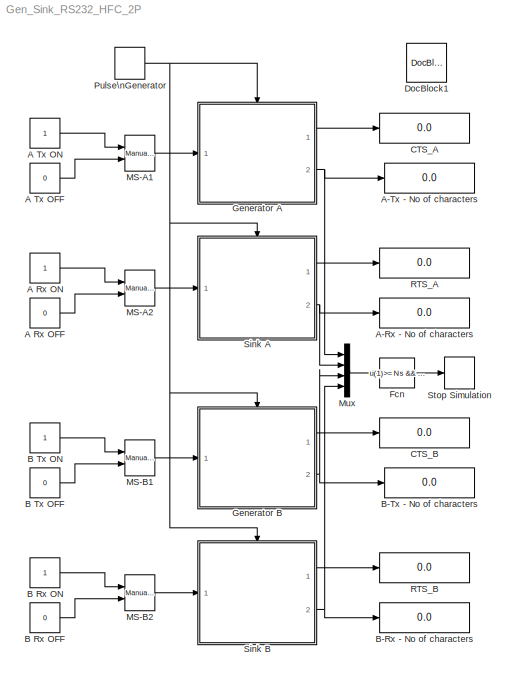
MODEL Gen_Sink_RS232_HFC_2P
KIND model
CONFIG PreLoadFcn = clear all;\nclose all;\nclc;\n\nTs = 1;          % clk (period)\n\nNs =  1;      % Characters to Tx and to Rx\n\n\n\n\n
CONFIG StartFcn = clc;\nclose all;\n\nNs =  100;      % Characters to Tx and to Rx\nminV = 0;       %  minimum data value\nmaxV = 255;       %  minimum data value\nTx_A = randi([minV maxV], 1, Ns, 'uint8');\nRx_A = randi([minV maxV], 1, Ns, 'uint8');\nTx_B = randi([minV maxV], 1, Ns, 'uint8');\nRx_B = randi([minV maxV], 1, Ns, 'uint8');\n\n%\n%   RS232 ports initialization\n%\nPORTNAME1 = 'COM57';\nfprintf('\\nOpen...<+848ch>
CONFIG StopFcn = %\n%   RS232 ports release\n%\ndisp(' ');\ndisp('Deactivating RS232 ports ......');\n\nfclose(s1)\ndelete(s1)\nclear s1\nfprintf('RS232 port %s deactivated\\n', PORTNAME1);\n\nfclose(s2)\ndelete(s2)\nclear s2\n\nfprintf('RS232 port %s deactivated\\n', PORTNAME2);\ndisp(' ');\n\nif sum(Tx_A == Rx_B) == Ns &&  sum(Tx_B == Rx_A) == Ns\n  disp('Data exchange without errors');\nelse\n   NeA = sum((Tx_A...<+237ch>
BLOCK [Constant] A Rx OFF
  SID = 74
  Value = 0
BLOCK [Constant] A Rx ON
  SID = 75
BLOCK [Constant] A Tx OFF
  SID = 72
  Value = 0
BLOCK [Constant] A Tx ON
  SID = 71
BLOCK [Display] A-Rx - No of characters
  Decimation = 1
  Lockdown = off
  Ports = [1]
  SID = 68
BLOCK [Display] A-Tx - No of characters
  Decimation = 1
  Lockdown = off
  Ports = [1]
  SID = 58
BLOCK [Constant] B Rx OFF
  SID = 91
  Value = 0
BLOCK [Constant] B Rx ON
  SID = 92
BLOCK [Constant] B Tx OFF
  SID = 95
  Value = 0
BLOCK [Constant] B Tx ON
  SID = 96
BLOCK [Display] B-Rx - No of characters
  Decimation = 1
  Lockdown = off
  Ports = [1]
  SID = 90
BLOCK [Display] B-Tx - No of characters
  Decimation = 1
  Lockdown = off
  Ports = [1]
  SID = 94
BLOCK [Display] CTS_A
  Decimation = 1
  Lockdown = off
  Ports = [1]
  SID = 56
BLOCK [Display] CTS_B
  Decimation = 1
  Lockdown = off
  Ports = [1]
  SID = 83
BLOCK [Reference] DocBlock1  REF=simulink/Model-Wide\nUtilities/DocBlock
  DocumentType = Text
  Ports = []
  SID = 15
  SourceBlock = simulink/Model-Wide\nUtilities/DocBlock
  SourceType = DocBlock
  UserData = DataTag0
  UserDataPersistent = on
BLOCK [Fcn] Fcn
  Expr = u(1)>= Ns && u(2)>=Ns && u(3)>=Ns && u(4)>=Ns
  SID = 81
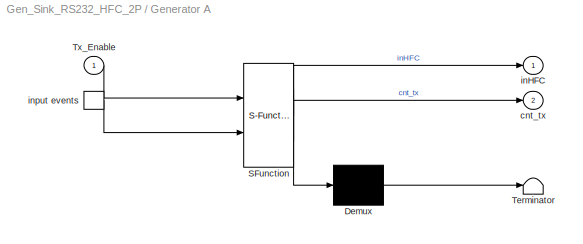
BLOCK [SubSystem] Generator A
  ErrorFcn = Stateflow.Translate.translate
  FunctionWithSeparateData = off
  MaskHideContents = off
  MinAlgLoopOccurrences = off
  Opaque = off
  PermitHierarchicalResolution = ExplicitOnly
  Ports = [1, 2, 0, 1]
  PropExecContextOutsideSubsystem = off
  RTWSystemCode = Auto
  RequestExecContextInheritance = off
  SFBlockType = Chart
  SID = 45
  TreatAsAtomicUnit = on
BLOCK [Demux] Generator A/ Demux 
  Outputs = 1
  Ports = [1, 1]
  SID = 45::54
BLOCK [S-Function] Generator A/ SFunction 
  EnableBusSupport = on
  FunctionName = sf_sfun
  PortCounts = [2 3]
  Ports = [2, 3]
  SID = 45::53
  Tag = Stateflow S-Function Gen_Sink_RS232_HFC_2P 3
BLOCK [Terminator] Generator A/ Terminator 
  SID = 45::55
BLOCK [TriggerPort] Generator A/ input events 
  Ports = [0, 1]
  SID = 45::29
  ShowOutputPort = on
  StatesWhenEnabling = held
  TriggerType = either
BLOCK [Inport] Generator A/Tx_Enable
  IconDisplay = Port number
  SID = 45::58
BLOCK [Outport] Generator A/cnt_tx
  IconDisplay = Port number
  Port = 2
  SID = 45::56
BLOCK [Outport] Generator A/inHFC
  IconDisplay = Port number
  SID = 45::57
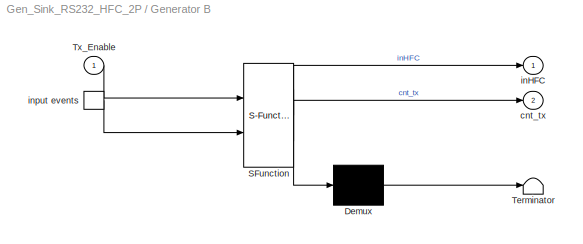
BLOCK [SubSystem] Generator B
  ErrorFcn = Stateflow.Translate.translate
  FunctionWithSeparateData = off
  MaskHideContents = off
  MinAlgLoopOccurrences = off
  Opaque = off
  PermitHierarchicalResolution = ExplicitOnly
  Ports = [1, 2, 0, 1]
  PropExecContextOutsideSubsystem = off
  RTWSystemCode = Auto
  RequestExecContextInheritance = off
  SFBlockType = Chart
  SID = 85
  TreatAsAtomicUnit = on
BLOCK [Demux] Generator B/ Demux 
  Outputs = 1
  Ports = [1, 1]
  SID = 85::54
BLOCK [S-Function] Generator B/ SFunction 
  EnableBusSupport = on
  FunctionName = sf_sfun
  PortCounts = [2 3]
  Ports = [2, 3]
  SID = 85::53
  Tag = Stateflow S-Function Gen_Sink_RS232_HFC_2P 2
BLOCK [Terminator] Generator B/ Terminator 
  SID = 85::55
BLOCK [TriggerPort] Generator B/ input events 
  Ports = [0, 1]
  SID = 85::29
  ShowOutputPort = on
  StatesWhenEnabling = held
  TriggerType = either
BLOCK [Inport] Generator B/Tx_Enable
  IconDisplay = Port number
  SID = 85::58
BLOCK [Outport] Generator B/cnt_tx
  IconDisplay = Port number
  Port = 2
  SID = 85::56
BLOCK [Outport] Generator B/inHFC
  IconDisplay = Port number
  SID = 85::57
BLOCK [Reference] MS-A1  REF=simulink/Signal\nRouting/Manual Switch
  Ports = [2, 1]
  SID = 70
  SourceBlock = simulink/Signal\nRouting/Manual Switch
  SourceType = Manual Switch
  action = 0
  sw = 1
  varsize = off
BLOCK [Reference] MS-A2  REF=simulink/Signal\nRouting/Manual Switch
  Ports = [2, 1]
  SID = 73
  SourceBlock = simulink/Signal\nRouting/Manual Switch
  SourceType = Manual Switch
  action = 0
  sw = 1
  varsize = off
BLOCK [Reference] MS-B1  REF=simulink/Signal\nRouting/Manual Switch
  Ports = [2, 1]
  SID = 86
  SourceBlock = simulink/Signal\nRouting/Manual Switch
  SourceType = Manual Switch
  action = 0
  sw = 1
  varsize = off
BLOCK [Reference] MS-B2  REF=simulink/Signal\nRouting/Manual Switch
  Ports = [2, 1]
  SID = 87
  SourceBlock = simulink/Signal\nRouting/Manual Switch
  SourceType = Manual Switch
  action = 0
  sw = 1
  varsize = off
BLOCK [Mux] Mux
  DisplayOption = bar
  Ports = [4, 1]
  SID = 82
BLOCK [DiscretePulseGenerator] Pulse\nGenerator
  Period = Ts
  Ports = [0, 1]
  PulseType = Time based
  PulseWidth = 50
  SID = 4
BLOCK [Display] RTS_A
  Decimation = 1
  Lockdown = off
  Ports = [1]
  SID = 69
BLOCK [Display] RTS_B
  Decimation = 1
  Lockdown = off
  Ports = [1]
  SID = 89
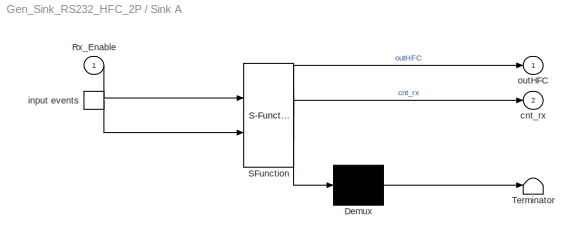
BLOCK [SubSystem] Sink A
  ErrorFcn = Stateflow.Translate.translate
  FunctionWithSeparateData = off
  MaskHideContents = off
  MinAlgLoopOccurrences = off
  Opaque = off
  PermitHierarchicalResolution = ExplicitOnly
  Ports = [1, 2, 0, 1]
  PropExecContextOutsideSubsystem = off
  RTWSystemCode = Auto
  RequestExecContextInheritance = off
  SFBlockType = Chart
  SID = 66
  TreatAsAtomicUnit = on
BLOCK [Demux] Sink A/ Demux 
  Outputs = 1
  Ports = [1, 1]
  SID = 66::54
BLOCK [S-Function] Sink A/ SFunction 
  EnableBusSupport = on
  FunctionName = sf_sfun
  PortCounts = [2 3]
  Ports = [2, 3]
  SID = 66::53
  Tag = Stateflow S-Function Gen_Sink_RS232_HFC_2P 1
BLOCK [Terminator] Sink A/ Terminator 
  SID = 66::55
BLOCK [TriggerPort] Sink A/ input events 
  Ports = [0, 1]
  SID = 66::29
  ShowOutputPort = on
  StatesWhenEnabling = held
  TriggerType = either
BLOCK [Inport] Sink A/Rx_Enable
  IconDisplay = Port number
  SID = 66::57
BLOCK [Outport] Sink A/cnt_rx
  IconDisplay = Port number
  Port = 2
  SID = 66::56
BLOCK [Outport] Sink A/outHFC
  IconDisplay = Port number
  SID = 66::49
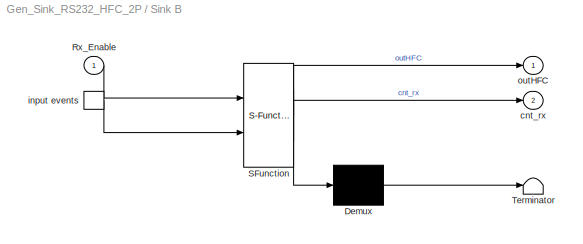
BLOCK [SubSystem] Sink B
  ErrorFcn = Stateflow.Translate.translate
  FunctionWithSeparateData = off
  MaskHideContents = off
  MinAlgLoopOccurrences = off
  Opaque = off
  PermitHierarchicalResolution = ExplicitOnly
  Ports = [1, 2, 0, 1]
  PropExecContextOutsideSubsystem = off
  RTWSystemCode = Auto
  RequestExecContextInheritance = off
  SFBlockType = Chart
  SID = 93
  TreatAsAtomicUnit = on
BLOCK [Demux] Sink B/ Demux 
  Outputs = 1
  Ports = [1, 1]
  SID = 93::54
BLOCK [S-Function] Sink B/ SFunction 
  EnableBusSupport = on
  FunctionName = sf_sfun
  PortCounts = [2 3]
  Ports = [2, 3]
  SID = 93::53
  Tag = Stateflow S-Function Gen_Sink_RS232_HFC_2P 4
BLOCK [Terminator] Sink B/ Terminator 
  SID = 93::55
BLOCK [TriggerPort] Sink B/ input events 
  Ports = [0, 1]
  SID = 93::29
  ShowOutputPort = on
  StatesWhenEnabling = held
  TriggerType = either
BLOCK [Inport] Sink B/Rx_Enable
  IconDisplay = Port number
  SID = 93::57
BLOCK [Outport] Sink B/cnt_rx
  IconDisplay = Port number
  Port = 2
  SID = 93::56
BLOCK [Outport] Sink B/outHFC
  IconDisplay = Port number
  SID = 93::49
BLOCK [Stop] Stop Simulation
  SID = 76
LINE A Rx OFF:1 -> MS-A2:2
LINE A Rx ON:1 -> MS-A2:1
LINE A Tx OFF:1 -> MS-A1:2
LINE A Tx ON:1 -> MS-A1:1
LINE B Rx OFF:1 -> MS-B2:2
LINE B Rx ON:1 -> MS-B2:1
LINE B Tx OFF:1 -> MS-B1:2
LINE B Tx ON:1 -> MS-B1:1
LINE Fcn:1 -> Stop Simulation:1
LINE Generator A/ Demux :1 -> Generator A/ Terminator :1
LINE Generator A/ SFunction :1 -> Generator A/ Demux :1
LINE Generator A/ SFunction :2 -> Generator A/inHFC:1
LINE Generator A/ SFunction :3 -> Generator A/cnt_tx:1
LINE Generator A/ input events :1 -> Generator A/ SFunction :2
LINE Generator A/Tx_Enable:1 -> Generator A/ SFunction :1
LINE Generator A:1 -> CTS_A:1
NET Generator A:2 -> A-Tx - No of characters:1, Mux:1
LINE Generator B/ Demux :1 -> Generator B/ Terminator :1
LINE Generator B/ SFunction :1 -> Generator B/ Demux :1
LINE Generator B/ SFunction :2 -> Generator B/inHFC:1
LINE Generator B/ SFunction :3 -> Generator B/cnt_tx:1
LINE Generator B/ input events :1 -> Generator B/ SFunction :2
LINE Generator B/Tx_Enable:1 -> Generator B/ SFunction :1
LINE Generator B:1 -> CTS_B:1
NET Generator B:2 -> B-Tx - No of characters:1, Mux:3
LINE MS-A1:1 -> Generator A:1
LINE MS-A2:1 -> Sink A:1
LINE MS-B1:1 -> Generator B:1
LINE MS-B2:1 -> Sink B:1
LINE Mux:1 -> Fcn:1
NET Pulse\nGenerator:1 -> Generator A:trigger, Generator B:trigger, Sink A:trigger, Sink B:trigger
LINE Sink A/ Demux :1 -> Sink A/ Terminator :1
LINE Sink A/ SFunction :1 -> Sink A/ Demux :1
LINE Sink A/ SFunction :2 -> Sink A/outHFC:1
LINE Sink A/ SFunction :3 -> Sink A/cnt_rx:1
LINE Sink A/ input events :1 -> Sink A/ SFunction :2
LINE Sink A/Rx_Enable:1 -> Sink A/ SFunction :1
LINE Sink A:1 -> RTS_A:1
NET Sink A:2 -> A-Rx - No of characters:1, Mux:2
LINE Sink B/ Demux :1 -> Sink B/ Terminator :1
LINE Sink B/ SFunction :1 -> Sink B/ Demux :1
LINE Sink B/ SFunction :2 -> Sink B/outHFC:1
LINE Sink B/ SFunction :3 -> Sink B/cnt_rx:1
LINE Sink B/ input events :1 -> Sink B/ SFunction :2
LINE Sink B/Rx_Enable:1 -> Sink B/ SFunction :1
LINE Sink B:1 -> RTS_B:1
NET Sink B:2 -> B-Rx - No of characters:1, Mux:4
note: NET lines group one-source signal fan-out (src -> all destinations, sorted); 1:1 wires keep LINE
CHART Sink A states=7 transitions=13
  STATE_LABEL "RxState\\nen: ml('DIn_1');\\n      Val_rx = ml.d2r_s1;\\n      cnt_rx = cnt_rx + 1;\\n      ml.Rx_A[cnt_rx] = Val_rx;"
  STATE_LABEL 'IniState'
  STATE_LABEL "HFCcon\\nLBstatus_rx = Rx_Enable;\\nml.rts_s1 = LBstatus_rx;\\noutHFC = LBstatus_rx;\\nml('RTS_1');"
  STATE_LABEL 'HFC_states'
  STATE_LABEL 'Rx'
  STATE_LABEL 'S1\\nLBstatus_rx = Rx_Enable;'
  STATE_LABEL 'S2'
CHART Generator B states=4 transitions=10
  STATE_LABEL "Dcalc\\nen: ml('CTS_2');\\n      LBstatus_tx = ml.cts_s2;\\n      inHFC = LBstatus_tx;"
  STATE_LABEL "IniState\\nml('CTS_2');\\nLBstatus_tx = ml.cts_s2;\\ninHFC = LBstatus_tx;"
  STATE_LABEL "TxState\\nen: cnt_tx = cnt_tx + 1;\\n      Val_tx = ml.Tx_B[cnt_tx];\\n      ml.d2o_s2 = Val_tx;\\n      ml('DOut_2');"
  STATE_LABEL 'Idle'
CHART Generator A states=4 transitions=10
  STATE_LABEL "Dcalc\\nen: ml('CTS_1');\\n      LBstatus_tx = ml.cts_s1;\\n      inHFC = LBstatus_tx;"
  STATE_LABEL "IniState\\nml('CTS_1');\\nLBstatus_tx = ml.cts_s1;\\ninHFC = LBstatus_tx;"
  STATE_LABEL "TxState\\nen: cnt_tx = cnt_tx + 1;\\n      Val_tx = ml.Tx_A[cnt_tx];\\n      ml.d2o_s1 = Val_tx;\\n      ml('DOut_1');"
  STATE_LABEL 'Idle'
CHART Sink B states=7 transitions=13
  STATE_LABEL "RxState\\nen: ml('DIn_2');\\n      Val_rx = ml.d2r_s2;\\n      cnt_rx = cnt_rx + 1;\\n      ml.Rx_B[cnt_rx] = Val_rx;"
  STATE_LABEL 'IniState'
  STATE_LABEL "HFCcon\\nLBstatus_rx = Rx_Enable;\\nml.rts_s2 = LBstatus_rx;\\noutHFC = LBstatus_rx;\\nml('RTS_2');"
  STATE_LABEL 'HFC_states'
  STATE_LABEL 'Rx'
  STATE_LABEL 'S1\\nLBstatus_rx = Rx_Enable;'
  STATE_LABEL 'S2'
